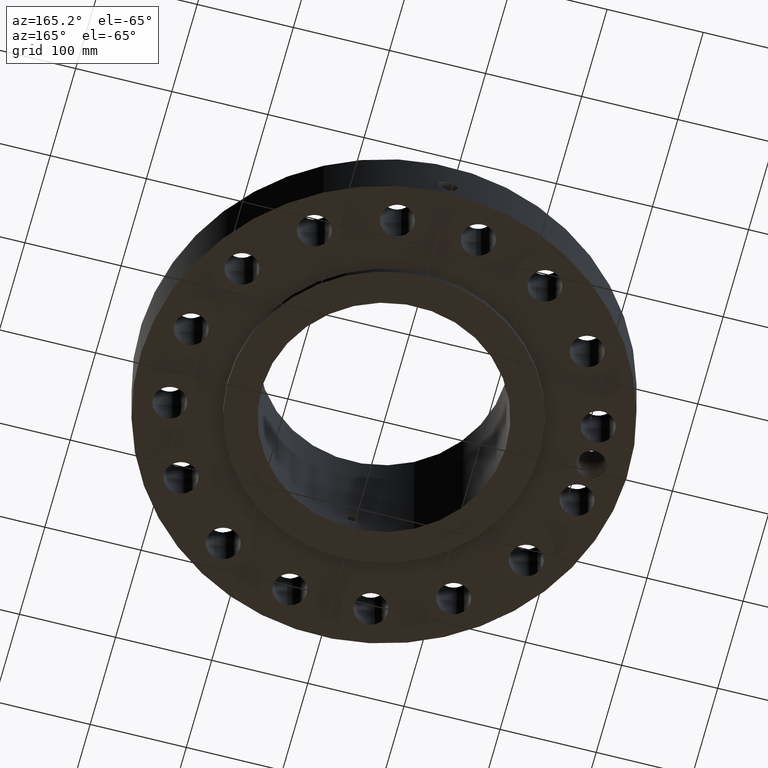
[diagram: clean part render]
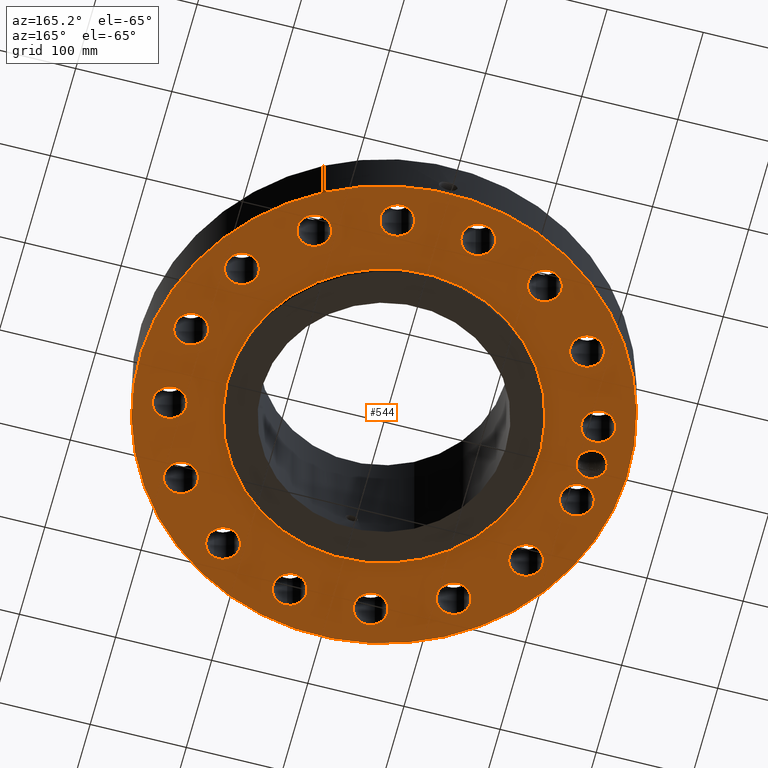
[diagram: same view with one face highlighted and labeled with its STEP entity id]
A machine part, auxiliary view. The second image highlights one B-rep face of the part: STEP entity #544.
In plain terms, the highlighted planar face has unit normal (0, 0, -1).
Its self-contained STEP definition (entity closure, byte-faithful):
#42=AXIS2_PLACEMENT_3D('Circle Axis2P3D',#40,#41,$) ;
#165=AXIS2_PLACEMENT_3D('Plane Axis2P3D',#162,#163,#164) ;
#169=AXIS2_PLACEMENT_3D('Circle Axis2P3D',#167,#168,$) ;
#178=AXIS2_PLACEMENT_3D('Circle Axis2P3D',#176,#177,$) ;
#187=AXIS2_PLACEMENT_3D('Circle Axis2P3D',#185,#186,$) ;
#194=AXIS2_PLACEMENT_3D('Circle Axis2P3D',#192,#193,$) ;
#240=AXIS2_PLACEMENT_3D('Circle Axis2P3D',#238,#239,$) ;
#249=AXIS2_PLACEMENT_3D('Circle Axis2P3D',#247,#248,$) ;
#258=AXIS2_PLACEMENT_3D('Circle Axis2P3D',#256,#257,$) ;
#267=AXIS2_PLACEMENT_3D('Circle Axis2P3D',#265,#266,$) ;
#276=AXIS2_PLACEMENT_3D('Circle Axis2P3D',#274,#275,$) ;
#285=AXIS2_PLACEMENT_3D('Circle Axis2P3D',#283,#284,$) ;
#294=AXIS2_PLACEMENT_3D('Circle Axis2P3D',#292,#293,$) ;
#303=AXIS2_PLACEMENT_3D('Circle Axis2P3D',#301,#302,$) ;
#312=AXIS2_PLACEMENT_3D('Circle Axis2P3D',#310,#311,$) ;
#321=AXIS2_PLACEMENT_3D('Circle Axis2P3D',#319,#320,$) ;
#330=AXIS2_PLACEMENT_3D('Circle Axis2P3D',#328,#329,$) ;
#339=AXIS2_PLACEMENT_3D('Circle Axis2P3D',#337,#338,$) ;
#348=AXIS2_PLACEMENT_3D('Circle Axis2P3D',#346,#347,$) ;
#357=AXIS2_PLACEMENT_3D('Circle Axis2P3D',#355,#356,$) ;
#366=AXIS2_PLACEMENT_3D('Circle Axis2P3D',#364,#365,$) ;
#375=AXIS2_PLACEMENT_3D('Circle Axis2P3D',#373,#374,$) ;
#384=AXIS2_PLACEMENT_3D('Circle Axis2P3D',#382,#383,$) ;
#393=AXIS2_PLACEMENT_3D('Circle Axis2P3D',#391,#392,$) ;
#402=AXIS2_PLACEMENT_3D('Circle Axis2P3D',#400,#401,$) ;
#411=AXIS2_PLACEMENT_3D('Circle Axis2P3D',#409,#410,$) ;
#420=AXIS2_PLACEMENT_3D('Circle Axis2P3D',#418,#419,$) ;
#429=AXIS2_PLACEMENT_3D('Circle Axis2P3D',#427,#428,$) ;
#438=AXIS2_PLACEMENT_3D('Circle Axis2P3D',#436,#437,$) ;
#447=AXIS2_PLACEMENT_3D('Circle Axis2P3D',#445,#446,$) ;
#456=AXIS2_PLACEMENT_3D('Circle Axis2P3D',#454,#455,$) ;
#465=AXIS2_PLACEMENT_3D('Circle Axis2P3D',#463,#464,$) ;
#474=AXIS2_PLACEMENT_3D('Circle Axis2P3D',#472,#473,$) ;
#483=AXIS2_PLACEMENT_3D('Circle Axis2P3D',#481,#482,$) ;
#492=AXIS2_PLACEMENT_3D('Circle Axis2P3D',#490,#491,$) ;
#501=AXIS2_PLACEMENT_3D('Circle Axis2P3D',#499,#500,$) ;
#510=AXIS2_PLACEMENT_3D('Circle Axis2P3D',#508,#509,$) ;
#519=AXIS2_PLACEMENT_3D('Circle Axis2P3D',#517,#518,$) ;
#528=AXIS2_PLACEMENT_3D('Circle Axis2P3D',#526,#527,$) ;
#537=AXIS2_PLACEMENT_3D('Circle Axis2P3D',#535,#536,$) ;
#40=CARTESIAN_POINT('Axis2P3D Location',(0.,0.,0.250000000001)) ;
#44=CARTESIAN_POINT('Vertex',(-4.79425538606,-8.77582561894,0.250000000001)) ;
#46=CARTESIAN_POINT('Vertex',(4.79425538606,8.77582561894,0.250000000001)) ;
#162=CARTESIAN_POINT('Axis2P3D Location',(0.,6.37500000003,0.250000000001)) ;
#167=CARTESIAN_POINT('Axis2P3D Location',(0.,0.,0.250000000001)) ;
#176=CARTESIAN_POINT('Axis2P3D Location',(-8.50000000003,-3.35689481461E-015,0.250000000001)) ;
#180=CARTESIAN_POINT('Vertex',(-7.96054999924,-0.294702878581,0.250000000001)) ;
#182=CARTESIAN_POINT('Vertex',(-9.0433787776,-0.287394492102,0.250000000001)) ;
#185=CARTESIAN_POINT('Axis2P3D Location',(-8.50000000003,-3.35689481461E-015,0.250000000001)) ;
#189=CARTESIAN_POINT('Vertex',(-9.03945000083,0.294702878581,0.250000000001)) ;
#192=CARTESIAN_POINT('Axis2P3D Location',(-8.50000000003,-3.35689481461E-015,0.250000000001)) ;
#196=CARTESIAN_POINT('Vertex',(-9.06098111016,0.251309140477,0.250000000001)) ;
#200=CARTESIAN_POINT('Control Point',(-9.12424995885,2.91729622478E-005,0.250000000001)) ;
#201=CARTESIAN_POINT('Control Point',(-9.12238340048,0.0512660007408,0.250000000001)) ;
#202=CARTESIAN_POINT('Control Point',(-9.11525645649,0.102221070188,0.250000000001)) ;
#203=CARTESIAN_POINT('Control Point',(-9.1029141049,0.152151074728,0.250000000001)) ;
#204=CARTESIAN_POINT('Control Point',(-9.08515810855,0.201428656399,0.250000000001)) ;
#205=CARTESIAN_POINT('Control Point',(-9.06249963078,0.24821095804,0.250000000001)) ;
#206=CARTESIAN_POINT('Control Point',(-9.06199584874,0.249244924643,0.250000000001)) ;
#207=CARTESIAN_POINT('Control Point',(-9.06148967391,0.250277654588,0.250000000001)) ;
#208=CARTESIAN_POINT('Control Point',(-9.06098111016,0.251309140477,0.250000000001)) ;
#209=CARTESIAN_POINT('Vertex',(-9.12424995885,2.91729622469E-005,0.250000000001)) ;
#213=CARTESIAN_POINT('Control Point',(-9.12466019868,-0.0206067790024,0.250000000001)) ;
#214=CARTESIAN_POINT('Control Point',(-9.12464637682,-0.0164775560384,0.250000000001)) ;
#215=CARTESIAN_POINT('Control Point',(-9.12459843416,-0.0123490197298,0.250000000001)) ;
#216=CARTESIAN_POINT('Control Point',(-9.12451636557,-0.00822105223449,0.250000000001)) ;
#217=CARTESIAN_POINT('Control Point',(-9.12440020352,-0.00409502712924,0.250000000001)) ;
#218=CARTESIAN_POINT('Control Point',(-9.12424995885,2.91729622467E-005,0.250000000001)) ;
#219=CARTESIAN_POINT('Vertex',(-9.12466019868,-0.0206067790024,0.250000000001)) ;
#223=CARTESIAN_POINT('Control Point',(-9.12466019868,-0.0206067790024,0.250000000001)) ;
#224=CARTESIAN_POINT('Control Point',(-9.1207486048,-0.0769605302829,0.250000000001)) ;
#225=CARTESIAN_POINT('Control Point',(-9.11047385228,-0.132761709655,0.250000000001)) ;
#226=CARTESIAN_POINT('Control Point',(-9.09391620538,-0.187046673214,0.250000000001)) ;
#227=CARTESIAN_POINT('Control Point',(-9.07138510742,-0.238867169616,0.250000000001)) ;
#228=CARTESIAN_POINT('Control Point',(-9.0433787776,-0.287394492102,0.250000000001)) ;
#238=CARTESIAN_POINT('Axis2P3D Location',(8.33667488346,-1.65826773714,0.250000000001)) ;
#242=CARTESIAN_POINT('Vertex',(8.94220685117,-1.98907135878,0.250000000001)) ;
#244=CARTESIAN_POINT('Vertex',(7.73114291575,-1.32746411551,0.250000000001)) ;
#247=CARTESIAN_POINT('Axis2P3D Location',(8.33667488346,-1.65826773714,0.250000000001)) ;
#256=CARTESIAN_POINT('Axis2P3D Location',(0.,0.,0.250000000001)) ;
#260=CARTESIAN_POINT('Vertex',(3.05633780861,5.59458883207,0.250000000001)) ;
#262=CARTESIAN_POINT('Vertex',(-3.05633780861,-5.59458883207,0.250000000001)) ;
#265=CARTESIAN_POINT('Axis2P3D Location',(0.,0.,0.250000000001)) ;
#274=CARTESIAN_POINT('Axis2P3D Location',(7.0674917046,-4.72234698069,0.250000000001)) ;
#278=CARTESIAN_POINT('Vertex',(6.63464617872,-4.18499723356,0.250000000001)) ;
#280=CARTESIAN_POINT('Vertex',(7.50033723048,-5.25969672781,0.250000000001)) ;
#283=CARTESIAN_POINT('Axis2P3D Location',(7.0674917046,-4.72234698069,0.250000000001)) ;
#292=CARTESIAN_POINT('Axis2P3D Location',(4.72234698069,-7.0674917046,0.250000000001)) ;
#296=CARTESIAN_POINT('Vertex',(4.5280847042,-6.40540245991,0.250000000001)) ;
#298=CARTESIAN_POINT('Vertex',(4.91660925717,-7.72958094929,0.250000000001)) ;
#301=CARTESIAN_POINT('Axis2P3D Location',(4.72234698069,-7.0674917046,0.250000000001)) ;
#310=CARTESIAN_POINT('Axis2P3D Location',(1.65826773714,-8.33667488346,0.250000000001)) ;
#314=CARTESIAN_POINT('Vertex',(1.73216338065,-7.65064322685,0.250000000001)) ;
#316=CARTESIAN_POINT('Vertex',(1.58437209364,-9.02270654007,0.250000000001)) ;
#319=CARTESIAN_POINT('Axis2P3D Location',(1.65826773714,-8.33667488346,0.250000000001)) ;
#328=CARTESIAN_POINT('Axis2P3D Location',(-1.65826773714,-8.33667488346,0.250000000001)) ;
#332=CARTESIAN_POINT('Vertex',(-1.32746411551,-7.73114291575,0.250000000001)) ;
#334=CARTESIAN_POINT('Vertex',(-1.98907135878,-8.94220685117,0.250000000001)) ;
#337=CARTESIAN_POINT('Axis2P3D Location',(-1.65826773714,-8.33667488346,0.250000000001)) ;
#346=CARTESIAN_POINT('Axis2P3D Location',(-4.72234698069,-7.0674917046,0.250000000001)) ;
#350=CARTESIAN_POINT('Vertex',(-4.18499723356,-6.63464617872,0.250000000001)) ;
#352=CARTESIAN_POINT('Vertex',(-5.25969672781,-7.50033723048,0.250000000001)) ;
#355=CARTESIAN_POINT('Axis2P3D Location',(-4.72234698069,-7.0674917046,0.250000000001)) ;
#364=CARTESIAN_POINT('Axis2P3D Location',(-7.0674917046,-4.72234698069,0.250000000001)) ;
#368=CARTESIAN_POINT('Vertex',(-6.40540245991,-4.5280847042,0.250000000001)) ;
#370=CARTESIAN_POINT('Vertex',(-7.72958094929,-4.91660925717,0.250000000001)) ;
#373=CARTESIAN_POINT('Axis2P3D Location',(-7.0674917046,-4.72234698069,0.250000000001)) ;
#382=CARTESIAN_POINT('Axis2P3D Location',(-8.33667488346,-1.65826773714,0.250000000001)) ;
#386=CARTESIAN_POINT('Vertex',(-7.65064322685,-1.73216338065,0.250000000001)) ;
#388=CARTESIAN_POINT('Vertex',(-9.02270654007,-1.58437209364,0.250000000001)) ;
#391=CARTESIAN_POINT('Axis2P3D Location',(-8.33667488346,-1.65826773714,0.250000000001)) ;
#400=CARTESIAN_POINT('Axis2P3D Location',(-8.33667488346,1.65826773714,0.250000000001)) ;
#404=CARTESIAN_POINT('Vertex',(-7.73114291575,1.32746411551,0.250000000001)) ;
#406=CARTESIAN_POINT('Vertex',(-8.94220685117,1.98907135878,0.250000000001)) ;
#409=CARTESIAN_POINT('Axis2P3D Location',(-8.33667488346,1.65826773714,0.250000000001)) ;
#418=CARTESIAN_POINT('Axis2P3D Location',(-7.0674917046,4.72234698069,0.250000000001)) ;
#422=CARTESIAN_POINT('Vertex',(-6.63464617872,4.18499723356,0.250000000001)) ;
#424=CARTESIAN_POINT('Vertex',(-7.50033723048,5.25969672781,0.250000000001)) ;
#427=CARTESIAN_POINT('Axis2P3D Location',(-7.0674917046,4.72234698069,0.250000000001)) ;
#436=CARTESIAN_POINT('Axis2P3D Location',(-4.72234698069,7.0674917046,0.250000000001)) ;
#440=CARTESIAN_POINT('Vertex',(-4.5280847042,6.40540245991,0.250000000001)) ;
#442=CARTESIAN_POINT('Vertex',(-4.91660925717,7.72958094929,0.250000000001)) ;
#445=CARTESIAN_POINT('Axis2P3D Location',(-4.72234698069,7.0674917046,0.250000000001)) ;
#454=CARTESIAN_POINT('Axis2P3D Location',(-1.65826773714,8.33667488346,0.250000000001)) ;
#458=CARTESIAN_POINT('Vertex',(-1.73216338065,7.65064322685,0.250000000001)) ;
#460=CARTESIAN_POINT('Vertex',(-1.58437209364,9.02270654007,0.250000000001)) ;
#463=CARTESIAN_POINT('Axis2P3D Location',(-1.65826773714,8.33667488346,0.250000000001)) ;
#472=CARTESIAN_POINT('Axis2P3D Location',(1.65826773714,8.33667488346,0.250000000001)) ;
#476=CARTESIAN_POINT('Vertex',(1.32746411551,7.73114291575,0.250000000001)) ;
#478=CARTESIAN_POINT('Vertex',(1.98907135878,8.94220685117,0.250000000001)) ;
#481=CARTESIAN_POINT('Axis2P3D Location',(1.65826773714,8.33667488346,0.250000000001)) ;
#490=CARTESIAN_POINT('Axis2P3D Location',(4.72234698069,7.0674917046,0.250000000001)) ;
#494=CARTESIAN_POINT('Vertex',(4.18499723356,6.63464617872,0.250000000001)) ;
#496=CARTESIAN_POINT('Vertex',(5.25969672781,7.50033723048,0.250000000001)) ;
#499=CARTESIAN_POINT('Axis2P3D Location',(4.72234698069,7.0674917046,0.250000000001)) ;
#508=CARTESIAN_POINT('Axis2P3D Location',(7.0674917046,4.72234698069,0.250000000001)) ;
#512=CARTESIAN_POINT('Vertex',(6.40540245991,4.5280847042,0.250000000001)) ;
#514=CARTESIAN_POINT('Vertex',(7.72958094929,4.91660925717,0.250000000001)) ;
#517=CARTESIAN_POINT('Axis2P3D Location',(7.0674917046,4.72234698069,0.250000000001)) ;
#526=CARTESIAN_POINT('Axis2P3D Location',(8.33667488346,1.65826773714,0.250000000001)) ;
#530=CARTESIAN_POINT('Vertex',(7.65064322685,1.73216338065,0.250000000001)) ;
#532=CARTESIAN_POINT('Vertex',(9.02270654007,1.58437209364,0.250000000001)) ;
#535=CARTESIAN_POINT('Axis2P3D Location',(8.33667488346,1.65826773714,0.250000000001)) ;
#41=DIRECTION('Axis2P3D Direction',(0.,0.,-0.0393700787402)) ;
#163=DIRECTION('Axis2P3D Direction',(0.,0.,-0.0393700787402)) ;
#164=DIRECTION('Axis2P3D XDirection',(0.0393700787402,0.,0.)) ;
#168=DIRECTION('Axis2P3D Direction',(0.,0.,-0.0393700787402)) ;
#177=DIRECTION('Axis2P3D Direction',(0.,0.,-0.0393700787402)) ;
#186=DIRECTION('Axis2P3D Direction',(0.,0.,-0.0393700787402)) ;
#193=DIRECTION('Axis2P3D Direction',(0.,0.,-0.0393700787402)) ;
#239=DIRECTION('Axis2P3D Direction',(0.,0.,-0.0393700787402)) ;
#248=DIRECTION('Axis2P3D Direction',(0.,0.,-0.0393700787402)) ;
#257=DIRECTION('Axis2P3D Direction',(0.,0.,-0.0393700787402)) ;
#266=DIRECTION('Axis2P3D Direction',(0.,0.,-0.0393700787402)) ;
#275=DIRECTION('Axis2P3D Direction',(0.,0.,-0.0393700787402)) ;
#284=DIRECTION('Axis2P3D Direction',(0.,0.,-0.0393700787402)) ;
#293=DIRECTION('Axis2P3D Direction',(0.,0.,-0.0393700787402)) ;
#302=DIRECTION('Axis2P3D Direction',(0.,0.,-0.0393700787402)) ;
#311=DIRECTION('Axis2P3D Direction',(0.,0.,-0.0393700787402)) ;
#320=DIRECTION('Axis2P3D Direction',(0.,0.,-0.0393700787402)) ;
#329=DIRECTION('Axis2P3D Direction',(0.,0.,-0.0393700787402)) ;
#338=DIRECTION('Axis2P3D Direction',(0.,0.,-0.0393700787402)) ;
#347=DIRECTION('Axis2P3D Direction',(0.,0.,-0.0393700787402)) ;
#356=DIRECTION('Axis2P3D Direction',(0.,0.,-0.0393700787402)) ;
#365=DIRECTION('Axis2P3D Direction',(0.,0.,-0.0393700787402)) ;
#374=DIRECTION('Axis2P3D Direction',(0.,0.,-0.0393700787402)) ;
#383=DIRECTION('Axis2P3D Direction',(0.,0.,-0.0393700787402)) ;
#392=DIRECTION('Axis2P3D Direction',(0.,0.,-0.0393700787402)) ;
#401=DIRECTION('Axis2P3D Direction',(0.,0.,-0.0393700787402)) ;
#410=DIRECTION('Axis2P3D Direction',(0.,0.,-0.0393700787402)) ;
#419=DIRECTION('Axis2P3D Direction',(0.,0.,-0.0393700787402)) ;
#428=DIRECTION('Axis2P3D Direction',(0.,0.,-0.0393700787402)) ;
#437=DIRECTION('Axis2P3D Direction',(0.,0.,-0.0393700787402)) ;
#446=DIRECTION('Axis2P3D Direction',(0.,0.,-0.0393700787402)) ;
#455=DIRECTION('Axis2P3D Direction',(0.,0.,-0.0393700787402)) ;
#464=DIRECTION('Axis2P3D Direction',(0.,0.,-0.0393700787402)) ;
#473=DIRECTION('Axis2P3D Direction',(0.,0.,-0.0393700787402)) ;
#482=DIRECTION('Axis2P3D Direction',(0.,0.,-0.0393700787402)) ;
#491=DIRECTION('Axis2P3D Direction',(0.,0.,-0.0393700787402)) ;
#500=DIRECTION('Axis2P3D Direction',(0.,0.,-0.0393700787402)) ;
#509=DIRECTION('Axis2P3D Direction',(0.,0.,-0.0393700787402)) ;
#518=DIRECTION('Axis2P3D Direction',(0.,0.,-0.0393700787402)) ;
#527=DIRECTION('Axis2P3D Direction',(0.,0.,-0.0393700787402)) ;
#536=DIRECTION('Axis2P3D Direction',(0.,0.,-0.0393700787402)) ;
#173=ORIENTED_EDGE('',*,*,#48,.T.) ;
#174=ORIENTED_EDGE('',*,*,#171,.T.) ;
#231=ORIENTED_EDGE('',*,*,#184,.F.) ;
#232=ORIENTED_EDGE('',*,*,#191,.F.) ;
#233=ORIENTED_EDGE('',*,*,#198,.F.) ;
#234=ORIENTED_EDGE('',*,*,#211,.F.) ;
#235=ORIENTED_EDGE('',*,*,#221,.F.) ;
#236=ORIENTED_EDGE('',*,*,#229,.T.) ;
#253=ORIENTED_EDGE('',*,*,#246,.F.) ;
#254=ORIENTED_EDGE('',*,*,#251,.F.) ;
#271=ORIENTED_EDGE('',*,*,#264,.F.) ;
#272=ORIENTED_EDGE('',*,*,#269,.F.) ;
#289=ORIENTED_EDGE('',*,*,#282,.F.) ;
#290=ORIENTED_EDGE('',*,*,#287,.F.) ;
#307=ORIENTED_EDGE('',*,*,#300,.F.) ;
#308=ORIENTED_EDGE('',*,*,#305,.F.) ;
#325=ORIENTED_EDGE('',*,*,#318,.F.) ;
#326=ORIENTED_EDGE('',*,*,#323,.F.) ;
#343=ORIENTED_EDGE('',*,*,#336,.F.) ;
#344=ORIENTED_EDGE('',*,*,#341,.F.) ;
#361=ORIENTED_EDGE('',*,*,#354,.F.) ;
#362=ORIENTED_EDGE('',*,*,#359,.F.) ;
#379=ORIENTED_EDGE('',*,*,#372,.F.) ;
#380=ORIENTED_EDGE('',*,*,#377,.F.) ;
#397=ORIENTED_EDGE('',*,*,#390,.F.) ;
#398=ORIENTED_EDGE('',*,*,#395,.F.) ;
#415=ORIENTED_EDGE('',*,*,#408,.F.) ;
#416=ORIENTED_EDGE('',*,*,#413,.F.) ;
#433=ORIENTED_EDGE('',*,*,#426,.F.) ;
#434=ORIENTED_EDGE('',*,*,#431,.F.) ;
#451=ORIENTED_EDGE('',*,*,#444,.F.) ;
#452=ORIENTED_EDGE('',*,*,#449,.F.) ;
#469=ORIENTED_EDGE('',*,*,#462,.F.) ;
#470=ORIENTED_EDGE('',*,*,#467,.F.) ;
#487=ORIENTED_EDGE('',*,*,#480,.F.) ;
#488=ORIENTED_EDGE('',*,*,#485,.F.) ;
#505=ORIENTED_EDGE('',*,*,#498,.F.) ;
#506=ORIENTED_EDGE('',*,*,#503,.F.) ;
#523=ORIENTED_EDGE('',*,*,#516,.F.) ;
#524=ORIENTED_EDGE('',*,*,#521,.F.) ;
#541=ORIENTED_EDGE('',*,*,#534,.F.) ;
#542=ORIENTED_EDGE('',*,*,#539,.F.) ;
#237=FACE_BOUND('',#230,.T.) ;
#255=FACE_BOUND('',#252,.T.) ;
#273=FACE_BOUND('',#270,.T.) ;
#291=FACE_BOUND('',#288,.T.) ;
#309=FACE_BOUND('',#306,.T.) ;
#327=FACE_BOUND('',#324,.T.) ;
#345=FACE_BOUND('',#342,.T.) ;
#363=FACE_BOUND('',#360,.T.) ;
#381=FACE_BOUND('',#378,.T.) ;
#399=FACE_BOUND('',#396,.T.) ;
#417=FACE_BOUND('',#414,.T.) ;
#435=FACE_BOUND('',#432,.T.) ;
#453=FACE_BOUND('',#450,.T.) ;
#471=FACE_BOUND('',#468,.T.) ;
#489=FACE_BOUND('',#486,.T.) ;
#507=FACE_BOUND('',#504,.T.) ;
#525=FACE_BOUND('',#522,.T.) ;
#543=FACE_BOUND('',#540,.T.) ;
#544=ADVANCED_FACE('PartBody',(#175,#237,#255,#273,#291,#309,#327,#345,#363,#381,#399,#417,#435,#453,#471,#489,#507,#525,#543),#166,.T.) ;
#199=B_SPLINE_CURVE_WITH_KNOTS('',5,(#200,#201,#202,#203,#204,#205,#206,#207,#208),.UNSPECIFIED.,.F.,.U.,(6,3,6),(0.,8.96313624587,9.16596003578),.UNSPECIFIED.) ;
#212=B_SPLINE_CURVE_WITH_KNOTS('',5,(#213,#214,#215,#216,#217,#218),.UNSPECIFIED.,.F.,.U.,(6,6),(0.,0.721468696012),.UNSPECIFIED.) ;
#222=B_SPLINE_CURVE_WITH_KNOTS('',5,(#223,#224,#225,#226,#227,#228),.UNSPECIFIED.,.F.,.U.,(6,6),(0.,9.86991136258),.UNSPECIFIED.) ;
#43=CIRCLE('generated circle',#42,10.) ;
#170=CIRCLE('generated circle',#169,10.) ;
#179=CIRCLE('generated circle',#178,0.614700000002) ;
#188=CIRCLE('generated circle',#187,0.614700000002) ;
#195=CIRCLE('generated circle',#194,0.614700000002) ;
#241=CIRCLE('generated circle',#240,0.690000000003) ;
#250=CIRCLE('generated circle',#249,0.690000000003) ;
#259=CIRCLE('generated circle',#258,6.37500000003) ;
#268=CIRCLE('generated circle',#267,6.37500000003) ;
#277=CIRCLE('generated circle',#276,0.690000000003) ;
#286=CIRCLE('generated circle',#285,0.690000000003) ;
#295=CIRCLE('generated circle',#294,0.690000000003) ;
#304=CIRCLE('generated circle',#303,0.690000000003) ;
#313=CIRCLE('generated circle',#312,0.690000000003) ;
#322=CIRCLE('generated circle',#321,0.690000000003) ;
#331=CIRCLE('generated circle',#330,0.690000000003) ;
#340=CIRCLE('generated circle',#339,0.690000000003) ;
#349=CIRCLE('generated circle',#348,0.690000000003) ;
#358=CIRCLE('generated circle',#357,0.690000000003) ;
#367=CIRCLE('generated circle',#366,0.690000000003) ;
#376=CIRCLE('generated circle',#375,0.690000000003) ;
#385=CIRCLE('generated circle',#384,0.690000000003) ;
#394=CIRCLE('generated circle',#393,0.690000000003) ;
#403=CIRCLE('generated circle',#402,0.690000000003) ;
#412=CIRCLE('generated circle',#411,0.690000000003) ;
#421=CIRCLE('generated circle',#420,0.690000000003) ;
#430=CIRCLE('generated circle',#429,0.690000000003) ;
#439=CIRCLE('generated circle',#438,0.690000000003) ;
#448=CIRCLE('generated circle',#447,0.690000000003) ;
#457=CIRCLE('generated circle',#456,0.690000000003) ;
#466=CIRCLE('generated circle',#465,0.690000000003) ;
#475=CIRCLE('generated circle',#474,0.690000000003) ;
#484=CIRCLE('generated circle',#483,0.690000000003) ;
#493=CIRCLE('generated circle',#492,0.690000000003) ;
#502=CIRCLE('generated circle',#501,0.690000000003) ;
#511=CIRCLE('generated circle',#510,0.690000000003) ;
#520=CIRCLE('generated circle',#519,0.690000000003) ;
#529=CIRCLE('generated circle',#528,0.690000000003) ;
#538=CIRCLE('generated circle',#537,0.690000000003) ;
#48=EDGE_CURVE('',#45,#47,#43,.T.) ;
#171=EDGE_CURVE('',#47,#45,#170,.T.) ;
#184=EDGE_CURVE('',#181,#183,#179,.T.) ;
#191=EDGE_CURVE('',#190,#181,#188,.T.) ;
#198=EDGE_CURVE('',#197,#190,#195,.T.) ;
#211=EDGE_CURVE('',#210,#197,#199,.T.) ;
#221=EDGE_CURVE('',#220,#210,#212,.T.) ;
#229=EDGE_CURVE('',#220,#183,#222,.T.) ;
#246=EDGE_CURVE('',#243,#245,#241,.T.) ;
#251=EDGE_CURVE('',#245,#243,#250,.T.) ;
#264=EDGE_CURVE('',#261,#263,#259,.T.) ;
#269=EDGE_CURVE('',#263,#261,#268,.T.) ;
#282=EDGE_CURVE('',#279,#281,#277,.T.) ;
#287=EDGE_CURVE('',#281,#279,#286,.T.) ;
#300=EDGE_CURVE('',#297,#299,#295,.T.) ;
#305=EDGE_CURVE('',#299,#297,#304,.T.) ;
#318=EDGE_CURVE('',#315,#317,#313,.T.) ;
#323=EDGE_CURVE('',#317,#315,#322,.T.) ;
#336=EDGE_CURVE('',#333,#335,#331,.T.) ;
#341=EDGE_CURVE('',#335,#333,#340,.T.) ;
#354=EDGE_CURVE('',#351,#353,#349,.T.) ;
#359=EDGE_CURVE('',#353,#351,#358,.T.) ;
#372=EDGE_CURVE('',#369,#371,#367,.T.) ;
#377=EDGE_CURVE('',#371,#369,#376,.T.) ;
#390=EDGE_CURVE('',#387,#389,#385,.T.) ;
#395=EDGE_CURVE('',#389,#387,#394,.T.) ;
#408=EDGE_CURVE('',#405,#407,#403,.T.) ;
#413=EDGE_CURVE('',#407,#405,#412,.T.) ;
#426=EDGE_CURVE('',#423,#425,#421,.T.) ;
#431=EDGE_CURVE('',#425,#423,#430,.T.) ;
#444=EDGE_CURVE('',#441,#443,#439,.T.) ;
#449=EDGE_CURVE('',#443,#441,#448,.T.) ;
#462=EDGE_CURVE('',#459,#461,#457,.T.) ;
#467=EDGE_CURVE('',#461,#459,#466,.T.) ;
#480=EDGE_CURVE('',#477,#479,#475,.T.) ;
#485=EDGE_CURVE('',#479,#477,#484,.T.) ;
#498=EDGE_CURVE('',#495,#497,#493,.T.) ;
#503=EDGE_CURVE('',#497,#495,#502,.T.) ;
#516=EDGE_CURVE('',#513,#515,#511,.T.) ;
#521=EDGE_CURVE('',#515,#513,#520,.T.) ;
#534=EDGE_CURVE('',#531,#533,#529,.T.) ;
#539=EDGE_CURVE('',#533,#531,#538,.T.) ;
#172=EDGE_LOOP('',(#173,#174)) ;
#230=EDGE_LOOP('',(#231,#232,#233,#234,#235,#236)) ;
#252=EDGE_LOOP('',(#253,#254)) ;
#270=EDGE_LOOP('',(#271,#272)) ;
#288=EDGE_LOOP('',(#289,#290)) ;
#306=EDGE_LOOP('',(#307,#308)) ;
#324=EDGE_LOOP('',(#325,#326)) ;
#342=EDGE_LOOP('',(#343,#344)) ;
#360=EDGE_LOOP('',(#361,#362)) ;
#378=EDGE_LOOP('',(#379,#380)) ;
#396=EDGE_LOOP('',(#397,#398)) ;
#414=EDGE_LOOP('',(#415,#416)) ;
#432=EDGE_LOOP('',(#433,#434)) ;
#450=EDGE_LOOP('',(#451,#452)) ;
#468=EDGE_LOOP('',(#469,#470)) ;
#486=EDGE_LOOP('',(#487,#488)) ;
#504=EDGE_LOOP('',(#505,#506)) ;
#522=EDGE_LOOP('',(#523,#524)) ;
#540=EDGE_LOOP('',(#541,#542)) ;
#175=FACE_OUTER_BOUND('',#172,.T.) ;
#166=PLANE('',#165) ;
#45=VERTEX_POINT('',#44) ;
#47=VERTEX_POINT('',#46) ;
#181=VERTEX_POINT('',#180) ;
#183=VERTEX_POINT('',#182) ;
#190=VERTEX_POINT('',#189) ;
#197=VERTEX_POINT('',#196) ;
#210=VERTEX_POINT('',#209) ;
#220=VERTEX_POINT('',#219) ;
#243=VERTEX_POINT('',#242) ;
#245=VERTEX_POINT('',#244) ;
#261=VERTEX_POINT('',#260) ;
#263=VERTEX_POINT('',#262) ;
#279=VERTEX_POINT('',#278) ;
#281=VERTEX_POINT('',#280) ;
#297=VERTEX_POINT('',#296) ;
#299=VERTEX_POINT('',#298) ;
#315=VERTEX_POINT('',#314) ;
#317=VERTEX_POINT('',#316) ;
#333=VERTEX_POINT('',#332) ;
#335=VERTEX_POINT('',#334) ;
#351=VERTEX_POINT('',#350) ;
#353=VERTEX_POINT('',#352) ;
#369=VERTEX_POINT('',#368) ;
#371=VERTEX_POINT('',#370) ;
#387=VERTEX_POINT('',#386) ;
#389=VERTEX_POINT('',#388) ;
#405=VERTEX_POINT('',#404) ;
#407=VERTEX_POINT('',#406) ;
#423=VERTEX_POINT('',#422) ;
#425=VERTEX_POINT('',#424) ;
#441=VERTEX_POINT('',#440) ;
#443=VERTEX_POINT('',#442) ;
#459=VERTEX_POINT('',#458) ;
#461=VERTEX_POINT('',#460) ;
#477=VERTEX_POINT('',#476) ;
#479=VERTEX_POINT('',#478) ;
#495=VERTEX_POINT('',#494) ;
#497=VERTEX_POINT('',#496) ;
#513=VERTEX_POINT('',#512) ;
#515=VERTEX_POINT('',#514) ;
#531=VERTEX_POINT('',#530) ;
#533=VERTEX_POINT('',#532) ;